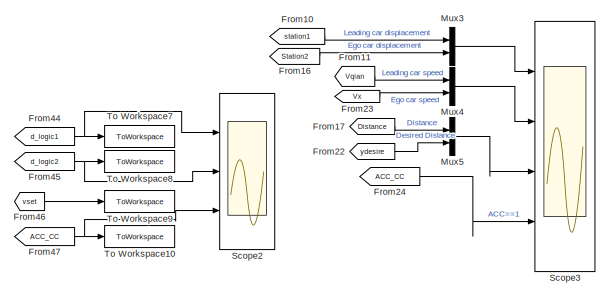
[diagram: root canvas - part 1/3, top right region]
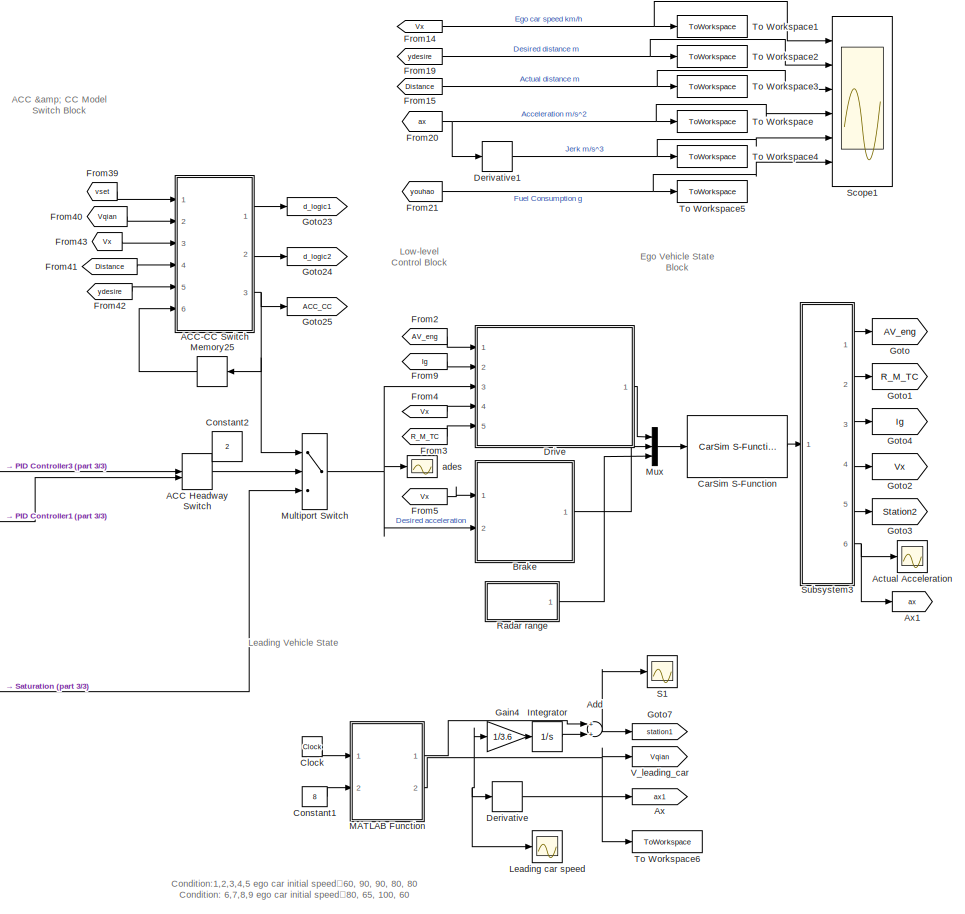
[diagram: root canvas - part 2/3, center side, full height]
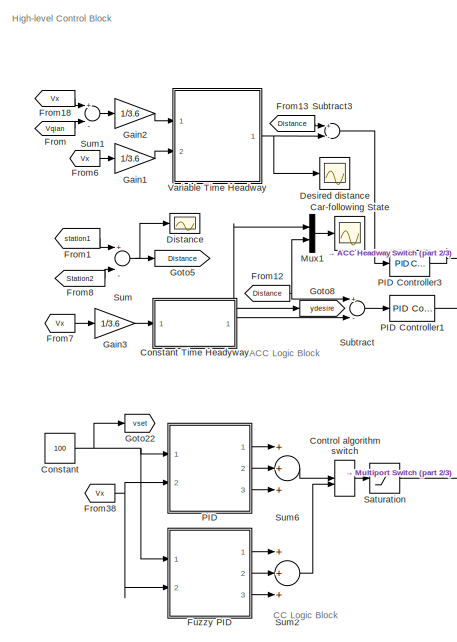
[diagram: root canvas - part 3/3, middle left region]
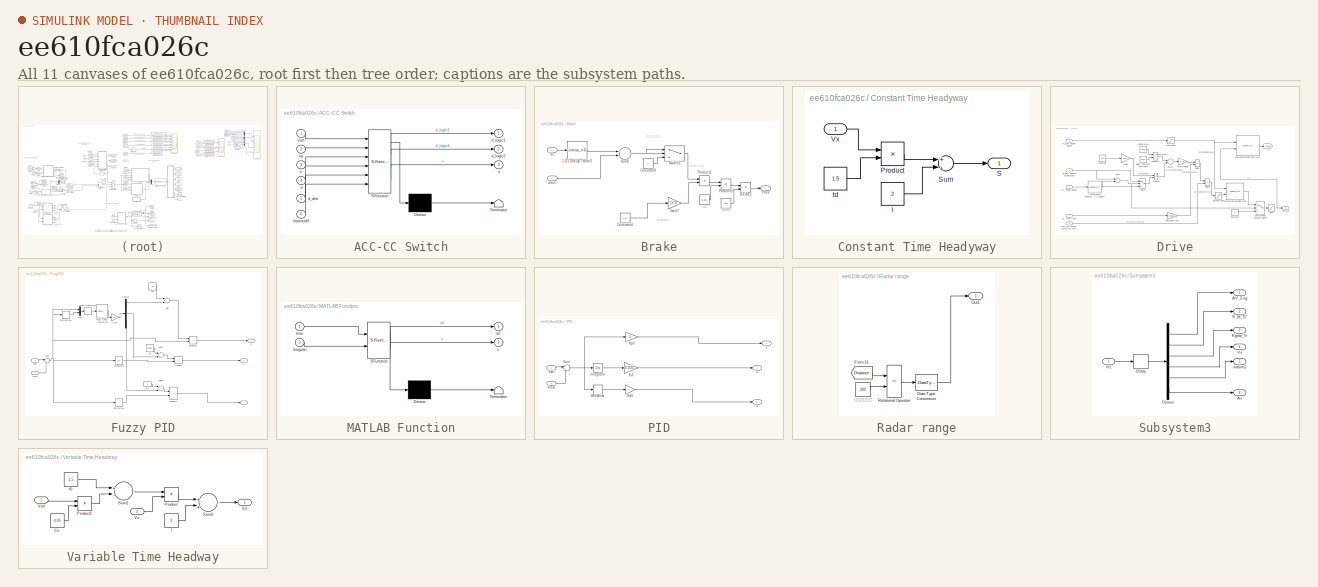
[diagram: thumbnail index - all 11 canvases of the model, root first then tree order]
MODEL slx_ee610fca026c
KIND model
CONFIG AbsTol = auto
CONFIG EnableMultiTasking = off
CONFIG FixedStep = auto
CONFIG InitFcn = step=0.001;%时间步长\n\n\nrun parma2.m
CONFIG MaxStep = auto
CONFIG MinStep = auto
CONFIG RelTol = 1e-3
CONFIG SampleTimeConstraint = Unconstrained
CONFIG Solver = FixedStepAuto
CONFIG SolverName = FixedStepAuto
CONFIG StartTime = 0.0
CONFIG StopTime = 20
BLOCK [ManualSwitch] ACC Headway Switch
  CurrentSetting = 0
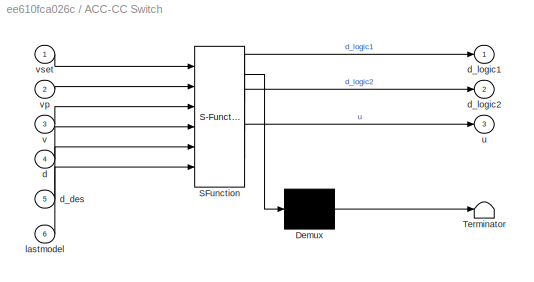
BLOCK [SubSystem] ACC-CC Switch
  ErrorFcn = Stateflow.Translate.translate
  PermitHierarchicalResolution = ExplicitOnly
  Ports = [6, 3]
  RequestExecContextInheritance = off
  SFBlockType = MATLAB Function
  TreatAsAtomicUnit = on
BLOCK [Demux] ACC-CC Switch/ Demux 
  Outputs = 1
  Ports = [1, 1]
BLOCK [S-Function] ACC-CC Switch/ SFunction 
  EnableBusSupport = off
  FunctionName = sf_sfun
  PortCounts = [6 4]
  Ports = [6, 4]
  SFcnIsStateOwnerBlock = off
  SFunctionDeploymentMode = off
  Tag = Stateflow S-Function ACC_CC_model_4_15 3
BLOCK [Terminator] ACC-CC Switch/ Terminator 
BLOCK [Inport] ACC-CC Switch/d
  IconDisplay = Port number
  Port = 4
BLOCK [Inport] ACC-CC Switch/d_des
  IconDisplay = Port number
  Port = 5
BLOCK [Outport] ACC-CC Switch/d_logic1
  IconDisplay = Port number
BLOCK [Outport] ACC-CC Switch/d_logic2
  IconDisplay = Port number
  Port = 2
BLOCK [Inport] ACC-CC Switch/lastmodel
  IconDisplay = Port number
  Port = 6
BLOCK [Outport] ACC-CC Switch/u
  IconDisplay = Port number
  Port = 3
BLOCK [Inport] ACC-CC Switch/v
  IconDisplay = Port number
  Port = 3
BLOCK [Inport] ACC-CC Switch/vp
  IconDisplay = Port number
  Port = 2
BLOCK [Inport] ACC-CC Switch/vset
  IconDisplay = Port number
BLOCK [Scope] Actual Acceleration
  Floating = off
  NumInputPorts = 1
  Ports = [1]
  ScopeSpecificationString = Simulink.scopes.TimeScopeBlockCfg('CurrentConfiguration', extmgr.ConfigurationSet(extmgr.Configuration('Core','General UI',true),extmgr.Configuration('Core','Source UI',true),extmgr.Configuration('Sources','WiredSimulink',true,'DataLoggingVariableName','Ax','DataLogging',true,'DataLoggingSaveFormat','Array'),extmgr.Configuration('Visuals','Time Domain',true,'SerializedDisplays',{struct('MinYLimRea...<+1473ch>
BLOCK [Sum] Add
  InputSameDT = off
  OutDataTypeStr = Inherit: Inherit via internal rule
  Ports = [2, 1]
  SaturateOnIntegerOverflow = off
BLOCK [Goto] Ax
  GotoTag = ax1
BLOCK [Goto] Ax1
  GotoTag = ax
BLOCK [SubSystem] Brake
  Ports = [2, 1]
  RequestExecContextInheritance = off
BLOCK [Lookup_n-D] Brake/1-D Lookup Table3
  BreakpointsForDimension1 = [31.161 42.544 43.731 60.431 61.327 74.254 75.115 101.91 150.66]
  InternalRulePriority = Speed
  InterpMethod = Cubic spline
  NumberOfTableDimensions = 1
  Ports = [1, 1]
  RndMeth = Simplest
  Table = [-0.23293 -0.31787 -0.19431 -0.2768 -0.193 -0.24877 -0.21234 -0.33737 -0.63461]
BLOCK [Constant] Brake/Constant3
  Value = 0
BLOCK [Constant] Brake/Constant4
  Value = 1.04
BLOCK [Product] Brake/Divide2
  InputSameDT = off
  Inputs = */
  OutDataTypeStr = Inherit: Inherit via internal rule
  Ports = [2, 1]
  RndMeth = Floor
  SaturateOnIntegerOverflow = off
BLOCK [Gain] Brake/Gain7
  Gain = 1370
  OutDataTypeStr = Inherit: Inherit via internal rule
  ParamDataTypeStr = Inherit: Inherit via internal rule
  SaturateOnIntegerOverflow = off
BLOCK [Outport] Brake/Pdes 
  IconDisplay = Port number
BLOCK [Product] Brake/Product2
  InputSameDT = off
  OutDataTypeStr = Inherit: Inherit via internal rule
  Ports = [2, 1]
  RndMeth = Floor
  SaturateOnIntegerOverflow = off
BLOCK [Product] Brake/Product3
  InputSameDT = off
  OutDataTypeStr = Inherit: Inherit via internal rule
  Ports = [2, 1]
  RndMeth = Floor
  SaturateOnIntegerOverflow = off
BLOCK [Sum] Brake/Sum3
  InputSameDT = off
  Inputs = +|-
  OutDataTypeStr = Inherit: Inherit via internal rule
  Ports = [2, 1]
  SaturateOnIntegerOverflow = off
BLOCK [Switch] Brake/Switch1
  Criteria = u2 > Threshold
  InputSameDT = off
  SaturateOnIntegerOverflow = off
  Threshold = 0.05
BLOCK [Inport] Brake/Vx
  IconDisplay = Port number
BLOCK [Inport] Brake/ades
  IconDisplay = Port number
  Port = 2
BLOCK [Constant] Brake/制动系数
  Value = 700
BLOCK [Constant] Brake/半径
  Value = 0.325
BLOCK [Scope] Car-following State
  Floating = off
  NumInputPorts = 1
  Ports = [1]
  ScopeSpecificationString = Simulink.scopes.TimeScopeBlockCfg('CurrentConfiguration', extmgr.ConfigurationSet(extmgr.Configuration('Core','General UI',true),extmgr.Configuration('Core','Source UI',true),extmgr.Configuration('Sources','WiredSimulink',true,'DataLoggingVariableName','ScopeData1','DataLoggingSaveFormat','Array'),extmgr.Configuration('Visuals','Time Domain',true,'SerializedDisplays',{struct('MinYLimReal','-9.0748...<+1470ch>
BLOCK [Reference] CarSim S-Function   REF=Solver_SF/CarSim S-Function
  AttributesFormatString = Vehicle Code: %<VehicleCode>
  Ports = [1, 1]
  Priority = 1
  SourceBlock = Solver_SF/CarSim S-Function
  SourceType = Vehicle math model library
BLOCK [Clock] Clock
BLOCK [Constant] Constant
  Value = 100
BLOCK [SubSystem] Constant Time Headyway
  Ports = [1, 1]
  RequestExecContextInheritance = off
BLOCK [Product] Constant Time Headyway/Product
  InputSameDT = off
  OutDataTypeStr = Inherit: Inherit via internal rule
  Ports = [2, 1]
  RndMeth = Floor
  SaturateOnIntegerOverflow = off
BLOCK [Outport] Constant Time Headyway/S
  IconDisplay = Port number
BLOCK [Sum] Constant Time Headyway/Sum
  InputSameDT = off
  Inputs = +|+
  OutDataTypeStr = Inherit: Inherit via internal rule
  Ports = [2, 1]
  SaturateOnIntegerOverflow = off
BLOCK [Inport] Constant Time Headyway/Vx
  IconDisplay = Port number
BLOCK [Constant] Constant Time Headyway/l
  Value = 2
BLOCK [Constant] Constant Time Headyway/td
  Value = 1.5
BLOCK [Constant] Constant1
  Value = 8
BLOCK [Constant] Constant2
  Value = 2
BLOCK [ManualSwitch] Control algorithm switch
BLOCK [Derivative] Derivative
BLOCK [Derivative] Derivative1
BLOCK [Scope] Desired distance 
  Floating = off
  NumInputPorts = 1
  Ports = [1]
  ScopeSpecificationString = Simulink.scopes.TimeScopeBlockCfg('CurrentConfiguration', extmgr.ConfigurationSet(extmgr.Configuration('Core','General UI',true),extmgr.Configuration('Core','Source UI',true),extmgr.Configuration('Sources','WiredSimulink',true,'DataLoggingVariableName','ddes2','DataLoggingSaveFormat','Array'),extmgr.Configuration('Visuals','Time Domain',true,'SerializedDisplays',{struct('MinYLimReal','-5.2422','Ma...<+1401ch>
BLOCK [Scope] Distance
  Floating = off
  NumInputPorts = 1
  Ports = [1]
  ScopeSpecificationString = Simulink.scopes.TimeScopeBlockCfg('CurrentConfiguration', extmgr.ConfigurationSet(extmgr.Configuration('Core','General UI',true),extmgr.Configuration('Core','Source UI',true),extmgr.Configuration('Sources','WiredSimulink',true,'DataLoggingVariableName','d_fact1','DataLogging',true,'DataLoggingSaveFormat','Array'),extmgr.Configuration('Visuals','Time Domain',true,'SerializedDisplays',{struct('MinYL...<+1484ch>
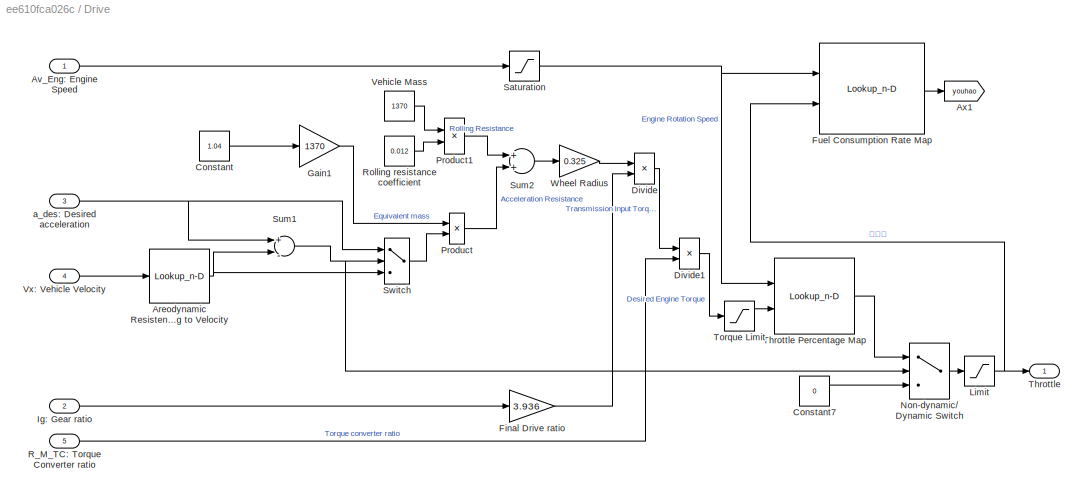
BLOCK [SubSystem] Drive
  Ports = [5, 1]
  RequestExecContextInheritance = off
BLOCK [Lookup_n-D] Drive/Areodynamic Resistence corresponding to Velocity
  BreakpointsForDimension1 = [31.161 42.544 43.731 60.431 61.327 74.254 75.115 101.91 150.66]
  ExtrapMethod = Cubic spline
  InternalRulePriority = Speed
  InterpMethod = Cubic spline
  NumberOfTableDimensions = 1
  Ports = [1, 1]
  RndMeth = Simplest
  Table = [-0.23293 -0.31787 -0.19431 -0.2768 -0.193 -0.24877 -0.21234 -0.33737 -0.63461]
BLOCK [Inport] Drive/Av_Eng: Engine Speed
  IconDisplay = Port number
BLOCK [Goto] Drive/Ax1
  GotoTag = youhao
  TagVisibility = global
BLOCK [Constant] Drive/Constant
  Value = 1.04
BLOCK [Constant] Drive/Constant7
  Value = 0
BLOCK [Product] Drive/Divide
  InputSameDT = off
  Inputs = */
  OutDataTypeStr = Inherit: Inherit via internal rule
  Ports = [2, 1]
  RndMeth = Floor
  SaturateOnIntegerOverflow = off
BLOCK [Product] Drive/Divide1
  InputSameDT = off
  Inputs = */
  OutDataTypeStr = Inherit: Inherit via internal rule
  Ports = [2, 1]
  RndMeth = Floor
  SaturateOnIntegerOverflow = off
BLOCK [Gain] Drive/Final Drive ratio
  Gain = 3.936
  OutDataTypeStr = Inherit: Inherit via internal rule
  ParamDataTypeStr = Inherit: Inherit via internal rule
  SaturateOnIntegerOverflow = off
BLOCK [Lookup_n-D] Drive/Fuel Consumption Rate Map
  BreakpointsForDimension1 = [0 600 800 1000 1200 1400 1600 1800 2000 2200 2400 2600 2800 3200 3600 4000 4400 4800 5200 5600 5800]
  BreakpointsForDimension1FirstPoint = 0
  BreakpointsForDimension1Spacing = 200
  BreakpointsForDimension2 = [0 0.04 0.08 0.12 0.16 0.2 0.24 0.28 0.32 0.36 0.4 0.44 0.48 0.52 0.56 0.6 0.64 0.68 0.72 0.76 0.8 0.84 0.88 0.92 0.96 1]
  BreakpointsForDimension2FirstPoint = 0
  BreakpointsForDimension2Spacing = 0.04
  BreakpointsSpecification = Even spacing
  InternalRulePriority = Speed
  Ports = [2, 1]
  RndMeth = Simplest
  Table = [8.00E-05	0.0002	0.0003	0.00032	0.00034	0.00037	0.00039	0.00041	0.00043	0.00046	0.00048	0.0005	0.00052	0.00055	0.00057	0.00059	0.00061	0.00064	0.00066	0.00068	0.0007	0.00073	0.00075	0.00077	0.00079	0.00082;0.00013	0.0002	0.0004	0.00059	0.00071	0.0008	0.00083	0.00085	0.00086	0.00087	0.00088	0.00089	0.0009	0.00091	0.00092	0.00093	0.00094	0.00096	0.00097	0.00098	0.00099	0.001	0.00101	0.00102	0.00103	...<+5247ch>
BLOCK [Gain] Drive/Gain1
  Gain = 1370
  OutDataTypeStr = Inherit: Inherit via internal rule
  ParamDataTypeStr = Inherit: Inherit via internal rule
  SaturateOnIntegerOverflow = off
BLOCK [Inport] Drive/Ig: Gear ratio
  IconDisplay = Port number
  Port = 2
BLOCK [Saturate] Drive/Limit
  InputPortMap = u0
  LowerLimit = 0
  Ports = [1, 1]
  UpperLimit = 1
BLOCK [Switch] Drive/Non-dynamic// Dynamic Switch
  Criteria = u2 > Threshold
  InputSameDT = off
  SaturateOnIntegerOverflow = off
  ZeroCross = off
BLOCK [Product] Drive/Product
  InputSameDT = off
  OutDataTypeStr = Inherit: Inherit via internal rule
  Ports = [2, 1]
  RndMeth = Floor
  SaturateOnIntegerOverflow = off
BLOCK [Product] Drive/Product1
  InputSameDT = off
  OutDataTypeStr = Inherit: Inherit via internal rule
  Ports = [2, 1]
  RndMeth = Floor
  SaturateOnIntegerOverflow = off
BLOCK [Inport] Drive/R_M_TC: Torque Converter ratio
  IconDisplay = Port number
  Port = 5
BLOCK [Constant] Drive/Rolling resistance coefficient
  Value = 0.012
BLOCK [Saturate] Drive/Saturation
  InputPortMap = u0
  LowerLimit = 0
  Ports = [1, 1]
  UpperLimit = 6400
BLOCK [Sum] Drive/Sum1
  InputSameDT = off
  Inputs = +|-
  OutDataTypeStr = Inherit: Inherit via internal rule
  Ports = [2, 1]
  SaturateOnIntegerOverflow = off
BLOCK [Sum] Drive/Sum2
  InputSameDT = off
  OutDataTypeStr = Inherit: Inherit via internal rule
  Ports = [2, 1]
  SaturateOnIntegerOverflow = off
BLOCK [Switch] Drive/Switch
  Criteria = u2 > Threshold
  InputSameDT = off
  SaturateOnIntegerOverflow = off
  Threshold = 0.05
  ZeroCross = off
BLOCK [Outport] Drive/Throttle 
  IconDisplay = Port number
BLOCK [Lookup_n-D] Drive/Throttle Percentage Map
  BreakpointsForDimension1 = [0:200:6400]
  BreakpointsForDimension1FirstPoint = 0
  BreakpointsForDimension1Spacing = 200
  BreakpointsForDimension2 = [-80:20:400]
  BreakpointsForDimension2FirstPoint = -80
  BreakpointsForDimension2Spacing = 20
  ExtrapMethod = Clip
  InternalRulePriority = Speed
  InterpMethod = Cubic spline
  Ports = [2, 1]
  RndMeth = Simplest
  Table = [0	0	0	0	0	0	0	0	0	0	0	0	0	0	0	0	0	0	0	0	0	0	0	0	0;0	0	0	0	0.00384203232361968	0.00984257347407071	0.0220398619570969	0.0431381611163926	0.0738017975356030	0.110363332239170	0.144256444326208	0.164816882208714	1	1	1	1	1	1	1	1	1	0	0	0	0;0	0	0	0	0.00233552878082050	0.00619500499883992	0.0144268956425663	0.0294970721851443	0.0529492390587595	0.0834478836501531	0.115463766954485	0.140265514400698	0.14...<+10655ch>
BLOCK [Saturate] Drive/Torque Limit
  InputPortMap = u0
  LowerLimit = -80
  Ports = [1, 1]
  UpperLimit = 400
BLOCK [Constant] Drive/Vehicle Mass
  Value = 1370
BLOCK [Inport] Drive/Vx: Vehicle Velocity
  IconDisplay = Port number
  Port = 4
BLOCK [Gain] Drive/Wheel Radius
  Gain = 0.325
  OutDataTypeStr = Inherit: Inherit via internal rule
  ParamDataTypeStr = Inherit: Inherit via internal rule
  SaturateOnIntegerOverflow = off
BLOCK [Inport] Drive/a_des: Desired acceleration
  IconDisplay = Port number
  Port = 3
BLOCK [From] From
  GotoTag = Vqian
BLOCK [From] From1
  GotoTag = station1
BLOCK [From] From10
  GotoTag = station1
BLOCK [From] From11
  GotoTag = Vqian
BLOCK [From] From12
  GotoTag = Distance
  TagVisibility = global
BLOCK [From] From13
  GotoTag = Distance
  TagVisibility = global
BLOCK [From] From14
  GotoTag = Vx
BLOCK [From] From15
  GotoTag = Distance
  TagVisibility = global
BLOCK [From] From16
  GotoTag = Station2
BLOCK [From] From17
  GotoTag = Distance
  TagVisibility = global
BLOCK [From] From18
  GotoTag = Vx
BLOCK [From] From19
  GotoTag = ydesire
  TagVisibility = global
BLOCK [From] From2
  GotoTag = AV_eng
BLOCK [From] From20
  GotoTag = ax
BLOCK [From] From21
  GotoTag = youhao
  TagVisibility = global
BLOCK [From] From22
  GotoTag = ydesire
  TagVisibility = global
BLOCK [From] From23
  GotoTag = Vx
BLOCK [From] From24
  GotoTag = ACC_CC
BLOCK [From] From3
  GotoTag = R_M_TC
BLOCK [From] From38
  GotoTag = Vx
BLOCK [From] From39
  GotoTag = vset
BLOCK [From] From4
  GotoTag = Vx
BLOCK [From] From40
  GotoTag = Vqian
BLOCK [From] From41
  GotoTag = Distance
  TagVisibility = global
BLOCK [From] From42
  GotoTag = ydesire
  TagVisibility = global
BLOCK [From] From43
  GotoTag = Vx
BLOCK [From] From44
  GotoTag = d_logic1
BLOCK [From] From45
  GotoTag = d_logic2
BLOCK [From] From46
  GotoTag = vset
BLOCK [From] From47
  GotoTag = ACC_CC
BLOCK [From] From5
  GotoTag = Vx
BLOCK [From] From6
  GotoTag = Vx
BLOCK [From] From7
  GotoTag = Vx
BLOCK [From] From8
  GotoTag = Station2
BLOCK [From] From9
  GotoTag = Ig
BLOCK [SubSystem] Fuzzy PID
  Ports = [2, 3]
  RequestExecContextInheritance = off
BLOCK [Outport] Fuzzy PID/1
  IconDisplay = Port number
BLOCK [Outport] Fuzzy PID/2
  IconDisplay = Port number
  Port = 2
BLOCK [Outport] Fuzzy PID/3
  IconDisplay = Port number
  Port = 3
BLOCK [Sum] Fuzzy PID/Add
  InputSameDT = off
  OutDataTypeStr = Inherit: Inherit via internal rule
  Ports = [2, 1]
  SaturateOnIntegerOverflow = off
BLOCK [Sum] Fuzzy PID/Add1
  InputSameDT = off
  OutDataTypeStr = Inherit: Inherit via internal rule
  Ports = [2, 1]
  SaturateOnIntegerOverflow = off
BLOCK [Sum] Fuzzy PID/Add2
  InputSameDT = off
  OutDataTypeStr = Inherit: Inherit via internal rule
  Ports = [2, 1]
  SaturateOnIntegerOverflow = off
BLOCK [Demux] Fuzzy PID/Demux
  DisplayOption = bar
  Outputs = 3
  Ports = [1, 3]
BLOCK [Derivative] Fuzzy PID/Derivative
BLOCK [Derivative] Fuzzy PID/Derivative1
BLOCK [Reference] Fuzzy PID/Fuzzy Logic Controller  REF=fuzblock/Fuzzy Logic   (lib defined in mdl_858b3b3e7478)
Controller
  Ports = [1, 1]
  SourceBlock = fuzblock/Fuzzy Logic \nController
  SourceProductBaseCode = FL
  SourceProductName = Fuzzy Logic Toolbox
  SourceType = Fuzzy Inference System
BLOCK [Gain] Fuzzy PID/Gain
  Gain = 0.1
  OutDataTypeStr = Inherit: Inherit via internal rule
  ParamDataTypeStr = Inherit: Inherit via internal rule
  SaturateOnIntegerOverflow = off
BLOCK [Integrator] Fuzzy PID/Integrator
  Ports = [1, 1]
BLOCK [Constant] Fuzzy PID/KI
  Value = 0.025
BLOCK [Constant] Fuzzy PID/KI1
  Value = 3
BLOCK [Constant] Fuzzy PID/KP
  Value = 20
BLOCK [Mux] Fuzzy PID/Mux
  DisplayOption = bar
  Inputs = 2
  Ports = [2, 1]
BLOCK [Product] Fuzzy PID/Product
  InputSameDT = off
  OutDataTypeStr = Inherit: Inherit via internal rule
  Ports = [2, 1]
  RndMeth = Floor
  SaturateOnIntegerOverflow = off
BLOCK [Product] Fuzzy PID/Product1
  InputSameDT = off
  OutDataTypeStr = Inherit: Inherit via internal rule
  Ports = [2, 1]
  RndMeth = Floor
  SaturateOnIntegerOverflow = off
BLOCK [Product] Fuzzy PID/Product2
  InputSameDT = off
  OutDataTypeStr = Inherit: Inherit via internal rule
  Ports = [2, 1]
  RndMeth = Floor
  SaturateOnIntegerOverflow = off
BLOCK [RateTransition] Fuzzy PID/Rate Transition
  OutPortSampleTime = 1
BLOCK [Sum] Fuzzy PID/Sum
  IconShape = round
  InputSameDT = off
  Inputs = |+-
  OutDataTypeStr = Inherit: Inherit via internal rule
  Ports = [2, 1]
  SaturateOnIntegerOverflow = off
BLOCK [Inport] Fuzzy PID/Vreal
  IconDisplay = Port number
  Port = 2
BLOCK [Inport] Fuzzy PID/Vset
  IconDisplay = Port number
BLOCK [Gain] Gain1
  Gain = 1/3.6
  OutDataTypeStr = Inherit: Inherit via internal rule
  ParamDataTypeStr = Inherit: Inherit via internal rule
  SaturateOnIntegerOverflow = off
BLOCK [Gain] Gain2
  Gain = 1/3.6
  OutDataTypeStr = Inherit: Inherit via internal rule
  ParamDataTypeStr = Inherit: Inherit via internal rule
  SaturateOnIntegerOverflow = off
BLOCK [Gain] Gain3
  Gain = 1/3.6
  OutDataTypeStr = Inherit: Inherit via internal rule
  ParamDataTypeStr = Inherit: Inherit via internal rule
  SaturateOnIntegerOverflow = off
BLOCK [Gain] Gain4
  Gain = 1/3.6
  OutDataTypeStr = Inherit: Inherit via internal rule
  ParamDataTypeStr = Inherit: Inherit via internal rule
  SaturateOnIntegerOverflow = off
BLOCK [Goto] Goto
  GotoTag = AV_eng
BLOCK [Goto] Goto1
  GotoTag = R_M_TC
BLOCK [Goto] Goto2
  GotoTag = Vx
BLOCK [Goto] Goto22
  GotoTag = vset
BLOCK [Goto] Goto23
  GotoTag = d_logic1
BLOCK [Goto] Goto24
  GotoTag = d_logic2
BLOCK [Goto] Goto25
  GotoTag = ACC_CC
BLOCK [Goto] Goto3
  GotoTag = Station2
BLOCK [Goto] Goto4
  GotoTag = Ig
BLOCK [Goto] Goto5
  GotoTag = Distance
  TagVisibility = global
BLOCK [Goto] Goto7
  GotoTag = station1
BLOCK [Goto] Goto8
  GotoTag = ydesire
  TagVisibility = global
BLOCK [Integrator] Integrator
  Ports = [1, 1]
BLOCK [Scope] Leading car speed
  Floating = off
  NumInputPorts = 1
  Ports = [1]
  ScopeSpecificationString = Simulink.scopes.TimeScopeBlockCfg('CurrentConfiguration', extmgr.ConfigurationSet(extmgr.Configuration('Core','General UI',true),extmgr.Configuration('Core','Source UI',true),extmgr.Configuration('Sources','WiredSimulink',true,'DataLoggingVariableName','ScopeData2','DataLoggingSaveFormat','Array'),extmgr.Configuration('Visuals','Time Domain',true,'SerializedDisplays',{struct('MinYLimReal','66.25',...<+1468ch>
BLOCK [SubSystem] MATLAB Function
  ErrorFcn = Stateflow.Translate.translate
  PermitHierarchicalResolution = ExplicitOnly
  Ports = [2, 2]
  RequestExecContextInheritance = off
  SFBlockType = MATLAB Function
  TreatAsAtomicUnit = on
BLOCK [Demux] MATLAB Function/ Demux 
  Outputs = 1
  Ports = [1, 1]
BLOCK [S-Function] MATLAB Function/ SFunction 
  EnableBusSupport = off
  FunctionName = sf_sfun
  PortCounts = [2 3]
  Ports = [2, 3]
  SFcnIsStateOwnerBlock = off
  SFunctionDeploymentMode = off
  Tag = Stateflow S-Function ACC_CC_model_4_15 1
BLOCK [Terminator] MATLAB Function/ Terminator 
BLOCK [Inport] MATLAB Function/kaiguan
  IconDisplay = Port number
  Port = 2
BLOCK [Outport] MATLAB Function/s0
  IconDisplay = Port number
BLOCK [Inport] MATLAB Function/time
  IconDisplay = Port number
BLOCK [Outport] MATLAB Function/v
  IconDisplay = Port number
  Port = 2
BLOCK [Memory] Memory25
BLOCK [MultiPortSwitch] Multiport Switch
  InputSameDT = off
  Inputs = 2
  Ports = [3, 1]
  SaturateOnIntegerOverflow = off
BLOCK [Mux] Mux
  DisplayOption = bar
  Inputs = 3
  Ports = [3, 1]
BLOCK [Mux] Mux1
  DisplayOption = bar
  Inputs = 2
  Ports = [2, 1]
BLOCK [Mux] Mux3
  DisplayOption = bar
  Inputs = 2
  Ports = [2, 1]
BLOCK [Mux] Mux4
  DisplayOption = bar
  Inputs = 2
  Ports = [2, 1]
BLOCK [Mux] Mux5
  DisplayOption = bar
  Inputs = 2
  Ports = [2, 1]
BLOCK [SubSystem] PID
  Ports = [2, 3]
  RequestExecContextInheritance = off
BLOCK [Reference] PID Controller1  REF=simulink/Continuous/PID Controller
  Ports = [1, 1]
  SourceBlock = simulink/Continuous/PID Controller
  SourceProductBaseCode = SL
  SourceProductName = Simulink
  SourceType = PID 1dof
BLOCK [Reference] PID Controller3  REF=simulink/Continuous/PID Controller
  Ports = [1, 1]
  SourceBlock = simulink/Continuous/PID Controller
  SourceProductBaseCode = SL
  SourceProductName = Simulink
  SourceType = PID 1dof
BLOCK [Outport] PID/1
  IconDisplay = Port number
BLOCK [Outport] PID/2
  IconDisplay = Port number
  Port = 2
BLOCK [Outport] PID/3
  IconDisplay = Port number
  Port = 3
BLOCK [Derivative] PID/Derivative
BLOCK [Integrator] PID/Integrator
  Ports = [1, 1]
BLOCK [Gain] PID/Kd0
  Gain = 3
  OutDataTypeStr = Inherit: Inherit via internal rule
  ParamDataTypeStr = Inherit: Inherit via internal rule
  SaturateOnIntegerOverflow = off
BLOCK [Gain] PID/Ki0
  Gain = 0.025
  OutDataTypeStr = Inherit: Inherit via internal rule
  ParamDataTypeStr = Inherit: Inherit via internal rule
  SaturateOnIntegerOverflow = off
BLOCK [Gain] PID/Kp0
  Gain = 5
  OutDataTypeStr = Inherit: Inherit via internal rule
  ParamDataTypeStr = Inherit: Inherit via internal rule
  SaturateOnIntegerOverflow = off
BLOCK [Sum] PID/Sum
  IconShape = round
  InputSameDT = off
  Inputs = |+-
  OutDataTypeStr = Inherit: Inherit via internal rule
  Ports = [2, 1]
  SaturateOnIntegerOverflow = off
BLOCK [Inport] PID/Vreal
  IconDisplay = Port number
  Port = 2
BLOCK [Inport] PID/Vset
  IconDisplay = Port number
BLOCK [SubSystem] Radar range
  Ports = [0, 1]
  RequestExecContextInheritance = off
BLOCK [DataTypeConversion] Radar range/Data Type Conversion
  RndMeth = Floor
  SaturateOnIntegerOverflow = off
BLOCK [From] Radar range/From11
  GotoTag = Distance
  TagVisibility = global
BLOCK [Outport] Radar range/Out1
  IconDisplay = Port number
BLOCK [RelationalOperator] Radar range/Relational Operator
  InputSameDT = off
  Operator = <=
  OutDataTypeStr = boolean
  Ports = [2, 1]
  RndMeth = Simplest
BLOCK [Constant] Radar range/雷达探测范围
  Value = 200
BLOCK [Scope] S1
  Floating = off
  NumInputPorts = 1
  Ports = [1]
  ScopeSpecificationString = Simulink.scopes.TimeScopeBlockCfg('CurrentConfiguration', extmgr.ConfigurationSet(extmgr.Configuration('Core','General UI',true),extmgr.Configuration('Core','Source UI',true),extmgr.Configuration('Sources','WiredSimulink',true,'DataLoggingVariableName','ScopeData1','DataLoggingSaveFormat','Array'),extmgr.Configuration('Visuals','Time Domain',true,'SerializedDisplays',{struct('MinYLimReal','-91.777...<+1482ch>
BLOCK [Saturate] Saturation
  InputPortMap = u0
  LowerLimit = -2
  Ports = [1, 1]
  UpperLimit = 2
BLOCK [Scope] Scope1
  Floating = off
  NumInputPorts = 6
  Ports = [6]
  ScopeSpecificationString = Simulink.scopes.TimeScopeBlockCfg('CurrentConfiguration', extmgr.ConfigurationSet(extmgr.Configuration('Core','General UI',true),extmgr.Configuration('Core','Source UI',true),extmgr.Configuration('Sources','WiredSimulink',true,'DataLoggingVariableName','ScopeData1'),extmgr.Configuration('Visuals','Time Domain',true,'SerializedDisplays',{struct('MinYLimReal','-12.72706','MaxYLimReal','114.54356','Y...<+4887ch>
BLOCK [Scope] Scope2
  Floating = off
  NumInputPorts = 3
  Ports = [3]
  ScopeSpecificationString = Simulink.scopes.TimeScopeBlockCfg('CurrentConfiguration', extmgr.ConfigurationSet(extmgr.Configuration('Core','General UI',true),extmgr.Configuration('Core','Source UI',true),extmgr.Configuration('Sources','WiredSimulink',true,'DataLoggingVariableName','ScopeData1'),extmgr.Configuration('Visuals','Time Domain',true,'SerializedDisplays',{struct('MinYLimReal','-39.89427','MaxYLimReal','65.7151','YLa...<+2739ch>
BLOCK [Scope] Scope3
  Floating = off
  NumInputPorts = 4
  Ports = [4]
  ScopeSpecificationString = Simulink.scopes.TimeScopeBlockCfg('CurrentConfiguration', extmgr.ConfigurationSet(extmgr.Configuration('Core','General UI',true),extmgr.Configuration('Core','Source UI',true),extmgr.Configuration('Sources','WiredSimulink',true,'DataLoggingVariableName','ScopeData2'),extmgr.Configuration('Visuals','Time Domain',true,'SerializedDisplays',{struct('MinYLimReal','-160.61458','MaxYLimReal','1445.53125',...<+3412ch>
BLOCK [SubSystem] Subsystem3
  Ports = [1, 6]
  RequestExecContextInheritance = off
BLOCK [Outport] Subsystem3/AV_Eng
  IconDisplay = Port number
BLOCK [Outport] Subsystem3/Ax
  IconDisplay = Port number
  Port = 6
BLOCK [Delay] Subsystem3/Delay
  DelayLength = 1
  InitialCondition = 0
  InputPortMap = u0
  Ports = [1, 1]
BLOCK [Demux] Subsystem3/Demux
  DisplayOption = bar
  Outputs = 6
  Ports = [1, 6]
BLOCK [Inport] Subsystem3/In1
  IconDisplay = Port number
BLOCK [Outport] Subsystem3/R_M_TC
  IconDisplay = Port number
  Port = 2
BLOCK [Outport] Subsystem3/Rgear_Tr
  IconDisplay = Port number
  Port = 3
BLOCK [Outport] Subsystem3/Vx
  IconDisplay = Port number
  Port = 4
BLOCK [Outport] Subsystem3/station2
  IconDisplay = Port number
  Port = 5
BLOCK [Sum] Subtract
  InputSameDT = off
  Inputs = +-
  OutDataTypeStr = Inherit: Inherit via internal rule
  Ports = [2, 1]
  SaturateOnIntegerOverflow = off
BLOCK [Sum] Subtract3
  InputSameDT = off
  Inputs = +-
  OutDataTypeStr = Inherit: Inherit via internal rule
  Ports = [2, 1]
  SaturateOnIntegerOverflow = off
BLOCK [Sum] Sum
  InputSameDT = off
  Inputs = +|-
  OutDataTypeStr = Inherit: Inherit via internal rule
  Ports = [2, 1]
  SaturateOnIntegerOverflow = off
BLOCK [Sum] Sum1
  InputSameDT = off
  Inputs = +|-
  OutDataTypeStr = Inherit: Inherit via internal rule
  Ports = [2, 1]
  SaturateOnIntegerOverflow = off
BLOCK [Sum] Sum2
  InputSameDT = off
  Inputs = +++
  OutDataTypeStr = Inherit: Inherit via internal rule
  Ports = [3, 1]
  SaturateOnIntegerOverflow = off
BLOCK [Sum] Sum6
  InputSameDT = off
  Inputs = +++
  OutDataTypeStr = Inherit: Inherit via internal rule
  Ports = [3, 1]
  SaturateOnIntegerOverflow = off
BLOCK [ToWorkspace] To Workspace
  FixptAsFi = on
  MaxDataPoints = inf
  Ports = [1]
  SampleTime = -1
  Save2DSignal = 3-D array (concatenate along third dimension)
  VariableName = ax_rear
BLOCK [ToWorkspace] To Workspace1
  FixptAsFi = on
  MaxDataPoints = inf
  Ports = [1]
  SampleTime = -1
  Save2DSignal = 3-D array (concatenate along third dimension)
  VariableName = vx_rear
BLOCK [ToWorkspace] To Workspace10
  FixptAsFi = on
  MaxDataPoints = inf
  Ports = [1]
  SampleTime = -1
  Save2DSignal = 3-D array (concatenate along third dimension)
  VariableName = ACC_CC
BLOCK [ToWorkspace] To Workspace2
  FixptAsFi = on
  MaxDataPoints = inf
  Ports = [1]
  SampleTime = -1
  Save2DSignal = 3-D array (concatenate along third dimension)
  VariableName = ds_desire
BLOCK [ToWorkspace] To Workspace3
  FixptAsFi = on
  MaxDataPoints = inf
  Ports = [1]
  SampleTime = -1
  Save2DSignal = 3-D array (concatenate along third dimension)
  VariableName = ds_real
BLOCK [ToWorkspace] To Workspace4
  FixptAsFi = on
  MaxDataPoints = inf
  Ports = [1]
  SampleTime = -1
  Save2DSignal = 3-D array (concatenate along third dimension)
  VariableName = dax_rear
BLOCK [ToWorkspace] To Workspace5
  FixptAsFi = on
  MaxDataPoints = inf
  Ports = [1]
  SampleTime = -1
  Save2DSignal = 3-D array (concatenate along third dimension)
  VariableName = L_oil
BLOCK [ToWorkspace] To Workspace6
  FixptAsFi = on
  MaxDataPoints = inf
  Ports = [1]
  SampleTime = -1
  Save2DSignal = 3-D array (concatenate along third dimension)
  VariableName = vx_front
BLOCK [ToWorkspace] To Workspace7
  FixptAsFi = on
  MaxDataPoints = inf
  Ports = [1]
  SampleTime = -1
  Save2DSignal = 3-D array (concatenate along third dimension)
  VariableName = d_logic1
BLOCK [ToWorkspace] To Workspace8
  FixptAsFi = on
  MaxDataPoints = inf
  Ports = [1]
  SampleTime = -1
  Save2DSignal = 3-D array (concatenate along third dimension)
  VariableName = d_logic2
BLOCK [ToWorkspace] To Workspace9
  FixptAsFi = on
  MaxDataPoints = inf
  Ports = [1]
  SampleTime = -1
  Save2DSignal = 3-D array (concatenate along third dimension)
  VariableName = vset
BLOCK [Goto] V_leading_car
  GotoTag = Vqian
BLOCK [SubSystem] Variable Time Headway
  Ports = [2, 1]
  RequestExecContextInheritance = off
BLOCK [Constant] Variable Time Headway/Cv
  Value = 0.05
BLOCK [Product] Variable Time Headway/Product
  InputSameDT = off
  OutDataTypeStr = Inherit: Inherit via internal rule
  Ports = [2, 1]
  RndMeth = Floor
  SaturateOnIntegerOverflow = off
BLOCK [Product] Variable Time Headway/Product1
  InputSameDT = off
  OutDataTypeStr = Inherit: Inherit via internal rule
  Ports = [2, 1]
  RndMeth = Floor
  SaturateOnIntegerOverflow = off
BLOCK [Outport] Variable Time Headway/S3
  IconDisplay = Port number
BLOCK [Sum] Variable Time Headway/Sum2
  InputSameDT = off
  Inputs = +|-
  OutDataTypeStr = Inherit: Inherit via internal rule
  Ports = [2, 1]
  SaturateOnIntegerOverflow = off
BLOCK [Sum] Variable Time Headway/Sum3
  InputSameDT = off
  Inputs = +|+
  OutDataTypeStr = Inherit: Inherit via internal rule
  Ports = [2, 1]
  SaturateOnIntegerOverflow = off
BLOCK [Inport] Variable Time Headway/Vrel
  IconDisplay = Port number
BLOCK [Inport] Variable Time Headway/Vx
  IconDisplay = Port number
  Port = 2
BLOCK [Constant] Variable Time Headway/l
  Value = 2
BLOCK [Constant] Variable Time Headway/t0
  Value = 1.5
BLOCK [Scope] ades
  Floating = off
  NumInputPorts = 1
  Ports = [1]
  ScopeSpecificationString = Simulink.scopes.TimeScopeBlockCfg('CurrentConfiguration', extmgr.ConfigurationSet(extmgr.Configuration('Core','General UI',true),extmgr.Configuration('Core','Source UI',true),extmgr.Configuration('Sources','WiredSimulink',true,'DataLoggingVariableName','ades','DataLoggingSaveFormat','Array'),extmgr.Configuration('Visuals','Time Domain',true,'SerializedDisplays',{struct('MinYLimReal','-714.97877','...<+1442ch>
ANNOTATION (root): ACC Logic Block
ANNOTATION (root): CC Logic Block
ANNOTATION (root): ACC & CC Model Switch Block
ANNOTATION (root): Ego Vehicle State Block
ANNOTATION (root): High-level Control Block
ANNOTATION (root): Leading Vehicle State
ANNOTATION (root): Low-level Control Block
ANNOTATION (root): Condition:1,2,3,4,5 ego car initial speed：60, 90, 90, 80, 80 Condition: 6,7,8,9 ego car initial speed：80, 65, 100, 60
ANNOTATION Brake: 滑行与制动切换
ANNOTATION Brake: 等效质量计算
LINE ACC Headway Switch:1 -> Multiport Switch:2
LINE ACC-CC Switch:1 -> Goto23:1
LINE ACC-CC Switch:2 -> Goto24:1
NET ACC-CC Switch:3 -> Goto25:1, Memory25:1, Multiport Switch:1
NET Add:1 -> Goto7:1, S1:1
LINE Brake/1-D Lookup Table3:1 -> Brake/Sum3:1
LINE Brake/Constant3:1 -> Brake/Switch1:3
LINE Brake/Constant4:1 -> Brake/Gain7:1
LINE Brake/Divide2:1 -> Brake/Pdes :1
LINE Brake/Gain7:1 -> Brake/Product2:2
LINE Brake/Product2:1 -> Brake/Product3:1
LINE Brake/Product3:1 -> Brake/Divide2:1
NET Brake/Sum3:1 -> Brake/Switch1:1, Brake/Switch1:2
LINE Brake/Switch1:1 -> Brake/Product2:1
LINE Brake/Vx:1 -> Brake/1-D Lookup Table3:1
LINE Brake/ades:1 -> Brake/Sum3:2
LINE Brake/制动系数:1 -> Brake/Divide2:2
LINE Brake/半径:1 -> Brake/Product3:2
LINE Brake:1 -> Mux:2
LINE CarSim S-Function :1 -> Subsystem3:1
LINE Clock:1 -> MATLAB Function:1
LINE Constant Time Headyway/Product:1 -> Constant Time Headyway/Sum:1
LINE Constant Time Headyway/Sum:1 -> Constant Time Headyway/S:1
LINE Constant Time Headyway/Vx:1 -> Constant Time Headyway/Product:1
LINE Constant Time Headyway/l:1 -> Constant Time Headyway/Sum:2
LINE Constant Time Headyway/td:1 -> Constant Time Headyway/Product:2
NET Constant Time Headyway:1 -> Goto8:1, Mux1:1, Subtract:2
LINE Constant1:1 -> MATLAB Function:2
NET Constant:1 -> Fuzzy PID:1, Goto22:1, PID:1
LINE Control algorithm switch:1 -> Saturation:1
NET Derivative1:1 -> Scope1:5, To Workspace4:1
LINE Derivative:1 -> Ax:1
NET Drive/Areodynamic Resistence corresponding to Velocity:1 -> Drive/Sum1:2, Drive/Switch:3
LINE Drive/Av_Eng: Engine Speed:1 -> Drive/Saturation:1
LINE Drive/Constant7:1 -> Drive/Non-dynamic// Dynamic Switch:3
LINE Drive/Constant:1 -> Drive/Gain1:1
LINE Drive/Divide1:1 -> Drive/Torque Limit:1
LINE Drive/Divide:1 -> Drive/Divide1:1
LINE Drive/Final Drive ratio:1 -> Drive/Divide:2
LINE Drive/Fuel Consumption Rate Map:1 -> Drive/Ax1:1
LINE Drive/Gain1:1 -> Drive/Product:1
LINE Drive/Ig: Gear ratio:1 -> Drive/Final Drive ratio:1
NET Drive/Limit:1 -> Drive/Fuel Consumption Rate Map:2, Drive/Throttle :1
LINE Drive/Non-dynamic// Dynamic Switch:1 -> Drive/Limit:1
LINE Drive/Product1:1 -> Drive/Sum2:1
LINE Drive/Product:1 -> Drive/Sum2:2
LINE Drive/R_M_TC: Torque Converter ratio:1 -> Drive/Divide1:2
LINE Drive/Rolling resistance coefficient:1 -> Drive/Product1:2
NET Drive/Saturation:1 -> Drive/Fuel Consumption Rate Map:1, Drive/Throttle Percentage Map:1
NET Drive/Sum1:1 -> Drive/Non-dynamic// Dynamic Switch:2, Drive/Switch:2
LINE Drive/Sum2:1 -> Drive/Wheel Radius:1
LINE Drive/Switch:1 -> Drive/Product:2
LINE Drive/Throttle Percentage Map:1 -> Drive/Non-dynamic// Dynamic Switch:1
LINE Drive/Torque Limit:1 -> Drive/Throttle Percentage Map:2
LINE Drive/Vehicle Mass:1 -> Drive/Product1:1
LINE Drive/Vx: Vehicle Velocity:1 -> Drive/Areodynamic Resistence corresponding to Velocity:1
LINE Drive/Wheel Radius:1 -> Drive/Divide:1
NET Drive/a_des: Desired acceleration:1 -> Drive/Sum1:1, Drive/Switch:1
LINE Drive:1 -> Mux:1
LINE From10:1 -> Mux3:1
LINE From11:1 -> Mux4:1
NET From12:1 -> Mux1:2, Subtract:1
LINE From13:1 -> Subtract3:1
NET From14:1 -> Scope1:1, To Workspace1:1
NET From15:1 -> Scope1:3, To Workspace3:1
LINE From16:1 -> Mux3:2
LINE From17:1 -> Mux5:1
LINE From18:1 -> Sum1:1
NET From19:1 -> Scope1:2, To Workspace2:1
LINE From1:1 -> Sum:1
NET From20:1 -> Derivative1:1, Scope1:4, To Workspace:1
NET From21:1 -> Scope1:6, To Workspace5:1
LINE From22:1 -> Mux5:2
LINE From23:1 -> Mux4:2
LINE From24:1 -> Scope3:4
LINE From2:1 -> Drive:1
NET From38:1 -> Fuzzy PID:2, PID:2
LINE From39:1 -> ACC-CC Switch:1
LINE From3:1 -> Drive:5
LINE From40:1 -> ACC-CC Switch:2
LINE From41:1 -> ACC-CC Switch:4
LINE From42:1 -> ACC-CC Switch:5
LINE From43:1 -> ACC-CC Switch:3
NET From44:1 -> Scope2:1, To Workspace7:1
NET From45:1 -> Scope2:2, To Workspace8:1
LINE From46:1 -> To Workspace9:1
NET From47:1 -> Scope2:3, To Workspace10:1
LINE From4:1 -> Drive:4
LINE From5:1 -> Brake:1
LINE From6:1 -> Gain1:1
LINE From7:1 -> Gain3:1
LINE From8:1 -> Sum:2
LINE From9:1 -> Drive:2
LINE From:1 -> Sum1:2
LINE Fuzzy PID/Add1:1 -> Fuzzy PID/Product:1
LINE Fuzzy PID/Add2:1 -> Fuzzy PID/Product2:1
LINE Fuzzy PID/Add:1 -> Fuzzy PID/Product1:1
LINE Fuzzy PID/Demux:1 -> Fuzzy PID/Add:2
LINE Fuzzy PID/Demux:2 -> Fuzzy PID/Add1:2
LINE Fuzzy PID/Demux:3 -> Fuzzy PID/Add2:2
LINE Fuzzy PID/Derivative1:1 -> Fuzzy PID/Mux:2
LINE Fuzzy PID/Derivative:1 -> Fuzzy PID/Product2:2
LINE Fuzzy PID/Fuzzy Logic Controller:1 -> Fuzzy PID/Gain:1
LINE Fuzzy PID/Gain:1 -> Fuzzy PID/Demux:1
LINE Fuzzy PID/Integrator:1 -> Fuzzy PID/Product:2
LINE Fuzzy PID/KI1:1 -> Fuzzy PID/Add2:1
LINE Fuzzy PID/KI:1 -> Fuzzy PID/Add1:1
LINE Fuzzy PID/KP:1 -> Fuzzy PID/Add:1
LINE Fuzzy PID/Mux:1 -> Fuzzy PID/Rate Transition:1
LINE Fuzzy PID/Product1:1 -> Fuzzy PID/1:1
LINE Fuzzy PID/Product2:1 -> Fuzzy PID/3:1
LINE Fuzzy PID/Product:1 -> Fuzzy PID/2:1
LINE Fuzzy PID/Rate Transition:1 -> Fuzzy PID/Fuzzy Logic Controller:1
NET Fuzzy PID/Sum:1 -> Fuzzy PID/Derivative1:1, Fuzzy PID/Derivative:1, Fuzzy PID/Integrator:1, Fuzzy PID/Mux:1, Fuzzy PID/Product1:2
LINE Fuzzy PID/Vreal:1 -> Fuzzy PID/Sum:2
LINE Fuzzy PID/Vset:1 -> Fuzzy PID/Sum:1
LINE Fuzzy PID:1 -> Sum2:1
LINE Fuzzy PID:2 -> Sum2:2
LINE Fuzzy PID:3 -> Sum2:3
LINE Gain1:1 -> Variable Time Headway:2
LINE Gain2:1 -> Variable Time Headway:1
LINE Gain3:1 -> Constant Time Headyway:1
LINE Gain4:1 -> Integrator:1
LINE Integrator:1 -> Add:2
LINE MATLAB Function:1 -> Add:1
NET MATLAB Function:2 -> Derivative:1, Gain4:1, Leading car speed:1, To Workspace6:1, V_leading_car:1
LINE Memory25:1 -> ACC-CC Switch:6
NET Multiport Switch:1 -> Brake:2, Drive:3, ades:1
LINE Mux1:1 -> Car-following State:1
LINE Mux3:1 -> Scope3:1
LINE Mux4:1 -> Scope3:2
LINE Mux5:1 -> Scope3:3
LINE Mux:1 -> CarSim S-Function :1
LINE PID Controller1:1 -> ACC Headway Switch:2
LINE PID Controller3:1 -> ACC Headway Switch:1
LINE PID/Derivative:1 -> PID/Kd0:1
LINE PID/Integrator:1 -> PID/Ki0:1
LINE PID/Kd0:1 -> PID/3:1
LINE PID/Ki0:1 -> PID/2:1
LINE PID/Kp0:1 -> PID/1:1
NET PID/Sum:1 -> PID/Derivative:1, PID/Integrator:1, PID/Kp0:1
LINE PID/Vreal:1 -> PID/Sum:2
LINE PID/Vset:1 -> PID/Sum:1
LINE PID:1 -> Sum6:1
LINE PID:2 -> Sum6:2
LINE PID:3 -> Sum6:3
LINE Radar range/Data Type Conversion:1 -> Radar range/Out1:1
LINE Radar range/From11:1 -> Radar range/Relational Operator:1
LINE Radar range/Relational Operator:1 -> Radar range/Data Type Conversion:1
LINE Radar range/雷达探测范围:1 -> Radar range/Relational Operator:2
LINE Radar range:1 -> Mux:3
LINE Saturation:1 -> Multiport Switch:3
LINE Subsystem3/Delay:1 -> Subsystem3/Demux:1
LINE Subsystem3/Demux:1 -> Subsystem3/AV_Eng:1
LINE Subsystem3/Demux:2 -> Subsystem3/R_M_TC:1
LINE Subsystem3/Demux:3 -> Subsystem3/Rgear_Tr:1
LINE Subsystem3/Demux:4 -> Subsystem3/Vx:1
LINE Subsystem3/Demux:5 -> Subsystem3/station2:1
LINE Subsystem3/Demux:6 -> Subsystem3/Ax:1
LINE Subsystem3/In1:1 -> Subsystem3/Delay:1
LINE Subsystem3:1 -> Goto:1
LINE Subsystem3:2 -> Goto1:1
LINE Subsystem3:3 -> Goto4:1
LINE Subsystem3:4 -> Goto2:1
LINE Subsystem3:5 -> Goto3:1
NET Subsystem3:6 -> Actual Acceleration:1, Ax1:1
LINE Subtract3:1 -> PID Controller3:1
LINE Subtract:1 -> PID Controller1:1
LINE Sum1:1 -> Gain2:1
LINE Sum2:1 -> Control algorithm switch:2
LINE Sum6:1 -> Control algorithm switch:1
NET Sum:1 -> Distance:1, Goto5:1
LINE Variable Time Headway/Cv:1 -> Variable Time Headway/Product1:2
LINE Variable Time Headway/Product1:1 -> Variable Time Headway/Sum2:2
LINE Variable Time Headway/Product:1 -> Variable Time Headway/Sum3:1
LINE Variable Time Headway/Sum2:1 -> Variable Time Headway/Product:1
LINE Variable Time Headway/Sum3:1 -> Variable Time Headway/S3:1
LINE Variable Time Headway/Vrel:1 -> Variable Time Headway/Product1:1
LINE Variable Time Headway/Vx:1 -> Variable Time Headway/Product:2
LINE Variable Time Headway/l:1 -> Variable Time Headway/Sum3:2
LINE Variable Time Headway/t0:1 -> Variable Time Headway/Sum2:1
NET Variable Time Headway:1 -> Desired distance :1, Subtract3:2
note: NET lines group one-source signal fan-out (src -> all destinations, sorted); 1:1 wires keep LINE
CHART MATLAB Function states=1 transitions=1
  STATE_LABEL 'eML_blk_kernel()'
  STATE_LABEL 'SCRIPT:\nfunction [s0,v] = fcn(time,kaiguan)\ntd=1.5;   %s;\n% switch=1~5 represents ACC operating conditions\n% switch=6~9 represents ACC/CC switching conditions\n \nswitch kaiguan\n    \n    case 1  %% *****************************Leading vehicle accelerates\n\n        %leading car accelerate condition\n        %t<9s leading car constant speed at 60km/h\n        %ego car keep 27m distance following\n        ...<+3608ch>'
CHART ACC-CC Switch states=1 transitions=1
  STATE_LABEL 'eML_blk_kernel()'
  STATE_LABEL 'SCRIPT:\nfunction [ d_logic1,d_logic2,u]  = fcn(vset,vp,v,d,d_des,lastmodel)\n% u=1：ACC   U=2：CC\nvset=vset/3.6;\nvp=vp/3.6;\nv=v/3.6;\n\nk2=1.2;d1=2;\nk1=1.999-1.196*exp(-0.1299*(vset-vp));\nd_logic1=d_des+k1/2*(vset-vp)+k2*(v-vset)+d1;\n\nk3=2;\nd2=2;\nk4=1.25;\nd_logic2=d_des+k3*(vset-vp)+k4*(v-vp)+d2;\n\nif vp>vset\n    if d<d_des\n        u=1;\n    elseif (d>=d_des)&&(d<d_logic1)\n        u=2;\n    elseif (d>=d_l...<+254ch>'
